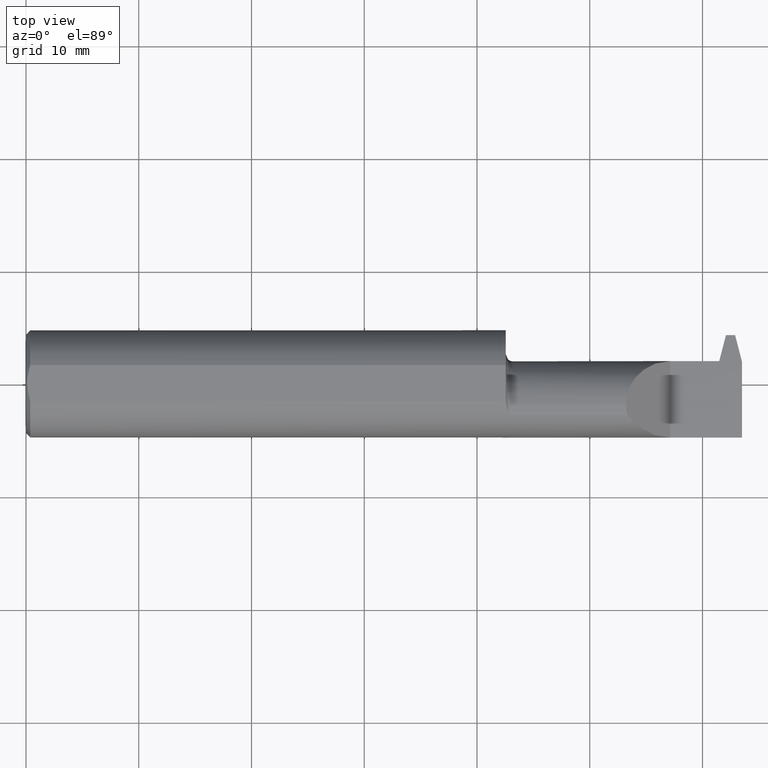
[diagram: clean part render]
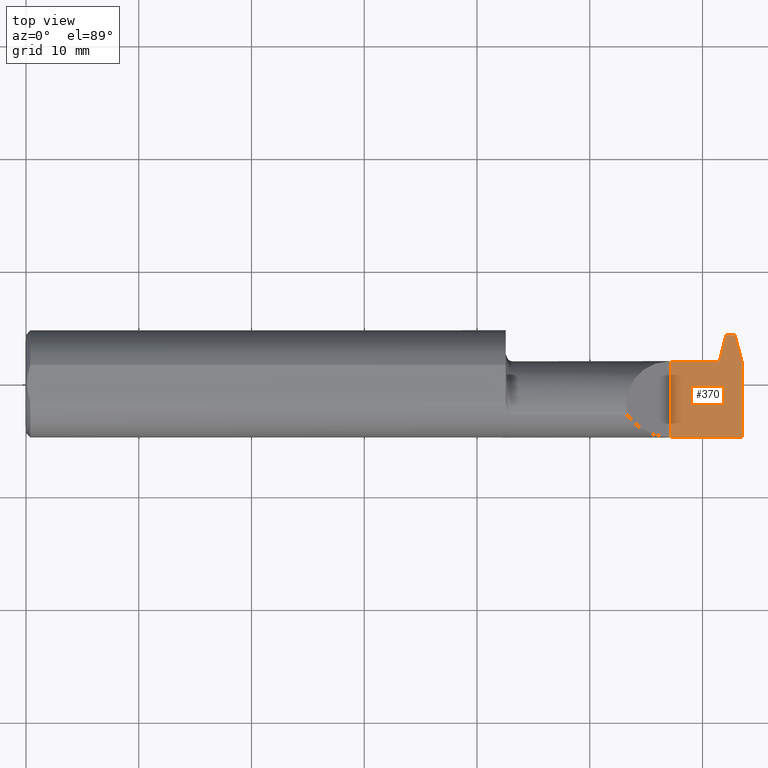
[diagram: same view with one face highlighted and labeled with its STEP entity id]
A machine part, top view. The second image highlights one B-rep face of the part: STEP entity #370.
In plain terms, the highlighted planar face has unit normal (-0, 0, -1).
Its self-contained STEP definition (entity closure, byte-faithful):
#19 = EDGE_CURVE ( 'NONE', #285, #581, #71, .T. ) ;
#28 = CARTESIAN_POINT ( 'NONE',  ( 2.500000000000000000, -0.1873499999999999888, -4.469813191451678053E-17 ) ) ;
#67 = ORIENTED_EDGE ( 'NONE', *, *, #578, .F. ) ;
#71 = LINE ( 'NONE', #548, #933 ) ;
#76 = CARTESIAN_POINT ( 'NONE',  ( 2.249999999999999556, 0.1706500000000036044, -4.469813191451678053E-17 ) ) ;
#126 = VECTOR ( 'NONE', #829, 39.37007874015748854 ) ;
#140 = FACE_OUTER_BOUND ( 'NONE', #600, .T. ) ;
#156 = LINE ( 'NONE', #76, #861 ) ;
#182 = ORIENTED_EDGE ( 'NONE', *, *, #797, .T. ) ;
#183 = CARTESIAN_POINT ( 'NONE',  ( 2.420465799823614539, 0.07964999999999992919, 0.000000000000000000 ) ) ;
#202 = CARTESIAN_POINT ( 'NONE',  ( 2.410465799823614308, 0.07964999999999992919, 0.000000000000000000 ) ) ;
#212 = PLANE ( 'NONE',  #681 ) ;
#213 = VERTEX_POINT ( 'NONE', #344 ) ;
#214 = LINE ( 'NONE', #741, #768 ) ;
#253 = CARTESIAN_POINT ( 'NONE',  ( 2.476000000000000423, 0.1706499999999999406, 0.000000000000000000 ) ) ;
#259 = VECTOR ( 'NONE', #485, 39.37007874015748143 ) ;
#285 = VERTEX_POINT ( 'NONE', #446 ) ;
#292 = ORIENTED_EDGE ( 'NONE', *, *, #333, .F. ) ;
#294 = VERTEX_POINT ( 'NONE', #427 ) ;
#331 = LINE ( 'NONE', #928, #259 ) ;
#333 = EDGE_CURVE ( 'NONE', #594, #213, #806, .T. ) ;
#338 = DIRECTION ( 'NONE',  ( -1.000000000000000000, -0.000000000000000000, -0.000000000000000000 ) ) ;
#344 = CARTESIAN_POINT ( 'NONE',  ( 2.500000000000000000, 0.07784888572242860960, 0.000000000000000000 ) ) ;
#359 = CARTESIAN_POINT ( 'NONE',  ( 2.250000000000000000, 0.2000000000000000111, -4.469813191451678053E-17 ) ) ;
#370 = ADVANCED_FACE ( 'NONE', ( #140 ), #212, .F. ) ;
#389 = DIRECTION ( 'NONE',  ( -1.000000000000000000, 1.644683908014518177E-14, 0.000000000000000000 ) ) ;
#427 = CARTESIAN_POINT ( 'NONE',  ( 2.443999999999999506, 0.1706500000000004680, 0.000000000000000000 ) ) ;
#435 = CARTESIAN_POINT ( 'NONE',  ( 2.475314547023544254, 0.1733004499999999115, 0.000000000000000000 ) ) ;
#446 = CARTESIAN_POINT ( 'NONE',  ( 2.250000000000000000, -0.1873499999999999888, -4.469813191451678053E-17 ) ) ;
#454 = DIRECTION ( 'NONE',  ( 0.2503800040544337246, -0.9681476403781097417, 0.000000000000000000 ) ) ;
#459 = ORIENTED_EDGE ( 'NONE', *, *, #982, .F. ) ;
#477 = VERTEX_POINT ( 'NONE', #603 ) ;
#485 = DIRECTION ( 'NONE',  ( -0.000000000000000000, 1.000000000000000000, -0.000000000000000000 ) ) ;
#535 = CARTESIAN_POINT ( 'NONE',  ( 2.444685452976455675, 0.1733004499999999115, 0.000000000000000000 ) ) ;
#547 = ORIENTED_EDGE ( 'NONE', *, *, #19, .F. ) ;
#548 = CARTESIAN_POINT ( 'NONE',  ( 2.250000000000000000, 0.2000000000000000111, -4.469813191451678053E-17 ) ) ;
#563 = CARTESIAN_POINT ( 'NONE',  ( 2.250000000000000000, 0.07964999999999992919, -4.469813191451678053E-17 ) ) ;
#575 = DIRECTION ( 'NONE',  ( 1.000000000000000000, 0.000000000000000000, 0.000000000000000000 ) ) ;
#578 = EDGE_CURVE ( 'NONE', #920, #602, #718, .T. ) ;
#581 = VERTEX_POINT ( 'NONE', #563 ) ;
#594 = VERTEX_POINT ( 'NONE', #253 ) ;
#600 = EDGE_LOOP ( 'NONE', ( #182, #697, #67, #459, #547, #817, #835, #292 ) ) ;
#602 = VERTEX_POINT ( 'NONE', #183 ) ;
#603 = CARTESIAN_POINT ( 'NONE',  ( 2.500000000000000000, -0.1873500000000000165, -4.469813191451678053E-17 ) ) ;
#607 = VECTOR ( 'NONE', #454, 39.37007874015748143 ) ;
#659 = DIRECTION ( 'NONE',  ( -0.000000000000000000, 0.000000000000000000, -1.000000000000000000 ) ) ;
#681 = AXIS2_PLACEMENT_3D ( 'NONE', #359, #659, #974 ) ;
#690 = DIRECTION ( 'NONE',  ( -0.000000000000000000, 1.000000000000000000, -0.000000000000000000 ) ) ;
#697 = ORIENTED_EDGE ( 'NONE', *, *, #847, .F. ) ;
#702 = EDGE_CURVE ( 'NONE', #477, #285, #707, .T. ) ;
#707 = LINE ( 'NONE', #28, #950 ) ;
#718 = LINE ( 'NONE', #868, #858 ) ;
#741 = CARTESIAN_POINT ( 'NONE',  ( 1.675000000000000044, 0.07964999999999992919, -4.469813191451678053E-17 ) ) ;
#758 = LINE ( 'NONE', #535, #126 ) ;
#768 = VECTOR ( 'NONE', #575, 39.37007874015748143 ) ;
#797 = EDGE_CURVE ( 'NONE', #594, #294, #156, .T. ) ;
#806 = LINE ( 'NONE', #435, #607 ) ;
#817 = ORIENTED_EDGE ( 'NONE', *, *, #702, .F. ) ;
#829 = DIRECTION ( 'NONE',  ( 0.2503800040544325589, 0.9681476403781099638, -0.000000000000000000 ) ) ;
#835 = ORIENTED_EDGE ( 'NONE', *, *, #881, .T. ) ;
#847 = EDGE_CURVE ( 'NONE', #602, #294, #758, .T. ) ;
#858 = VECTOR ( 'NONE', #926, 39.37007874015748143 ) ;
#861 = VECTOR ( 'NONE', #389, 39.37007874015748143 ) ;
#868 = CARTESIAN_POINT ( 'NONE',  ( 2.420465799823614539, 0.07964999999999992919, 0.000000000000000000 ) ) ;
#881 = EDGE_CURVE ( 'NONE', #477, #213, #331, .T. ) ;
#920 = VERTEX_POINT ( 'NONE', #202 ) ;
#926 = DIRECTION ( 'NONE',  ( 1.000000000000000000, -0.000000000000000000, -0.000000000000000000 ) ) ;
#928 = CARTESIAN_POINT ( 'NONE',  ( 2.500000000000000000, 0.2000000000000000111, -4.469813191451678053E-17 ) ) ;
#933 = VECTOR ( 'NONE', #690, 39.37007874015748143 ) ;
#950 = VECTOR ( 'NONE', #338, 39.37007874015748143 ) ;
#974 = DIRECTION ( 'NONE',  ( -1.000000000000000000, 0.000000000000000000, 0.000000000000000000 ) ) ;
#982 = EDGE_CURVE ( 'NONE', #581, #920, #214, .T. ) ;